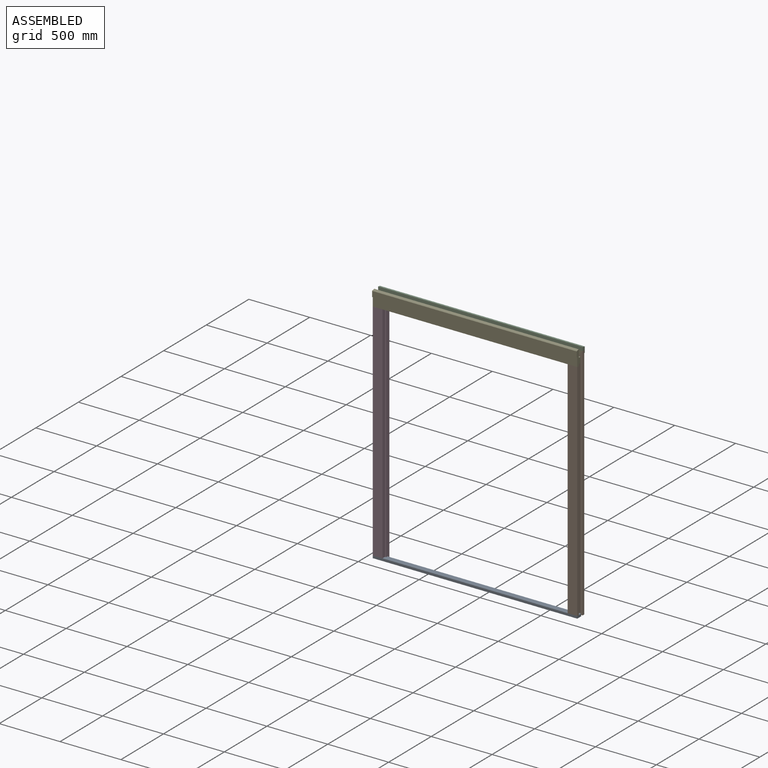
[diagram: assembled view]
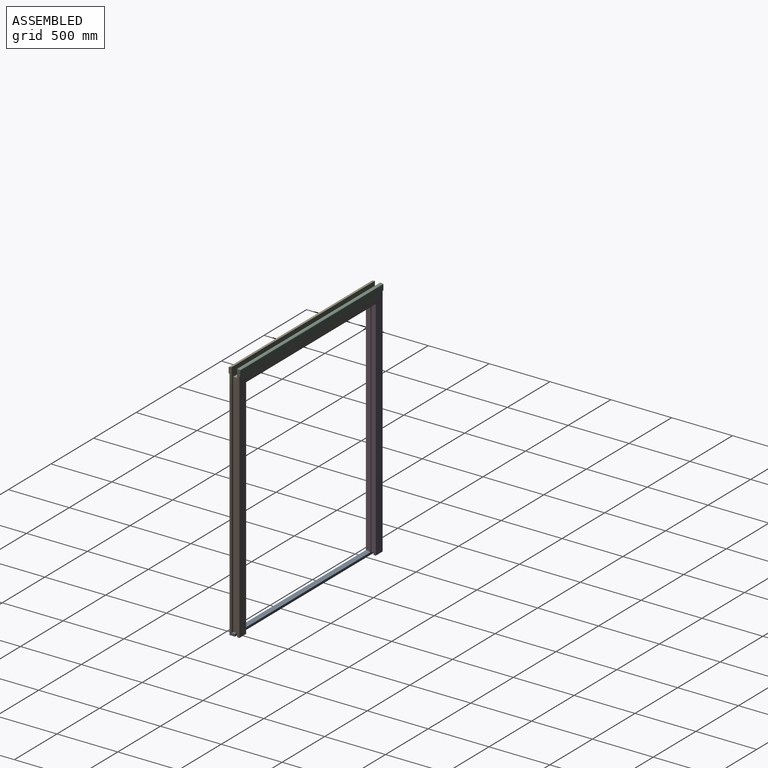
[diagram: assembled view, second angle]
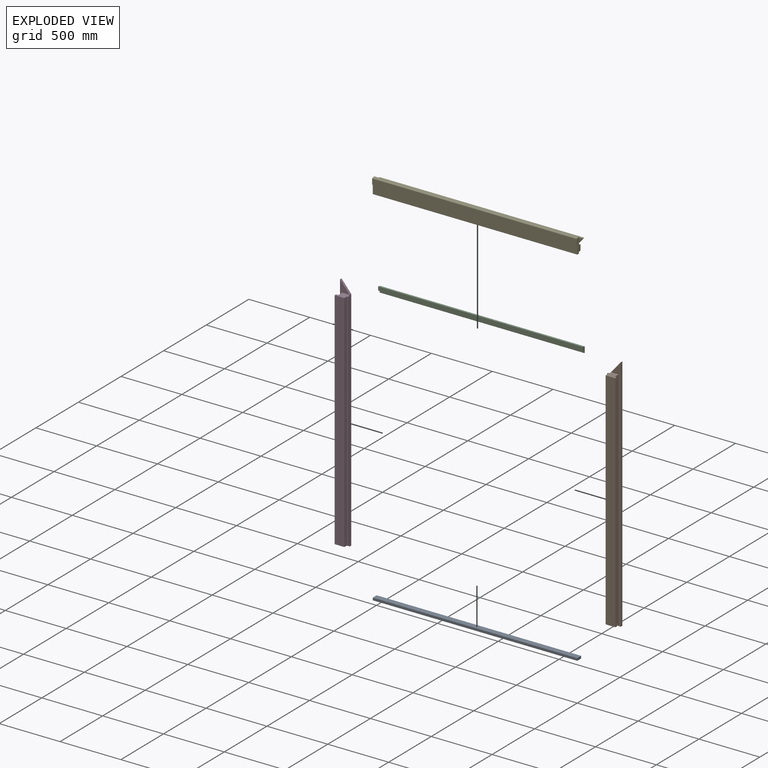
[diagram: exploded view]
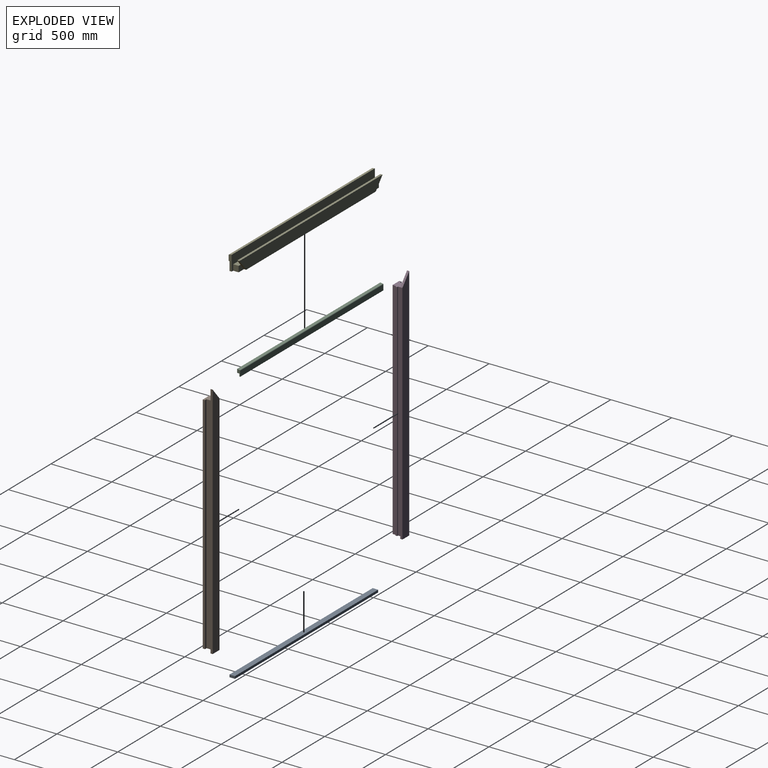
[diagram: exploded view, second angle]
ASSEMBLY  parts=5 mates=12
PART A: 6 faces, bbox 1681x45x20 mm
  f0: plane 1681x20mm, normal (0,-1,0), area 33620mm2, adj f1,f3,f4,f5
  f1: plane 1681x45mm, normal (0,0,-1), area 75645mm2, adj f0,f2,f4,f5
  f2: plane 1681x20mm, normal (0,1,0), area 33620mm2, adj f1,f3,f4,f5
  f3: plane 1681x45mm, normal (0,0,1), area 75645mm2, adj f0,f2,f4,f5
  f4: plane 45x20mm, normal (1,0,0), area 900mm2, adj f0,f1,f2,f3
  f5: plane 45x20mm, normal (-1,0,0), area 900mm2, adj f0,f1,f2,f3
PART B: 16 faces, bbox 90x81x1964 mm
  f0: plane 90x63mm, normal (0,0,-1), area 4380mm2, adj f2,f3,f4,f5,f8,f9,f10,f11
  f1: plane 90x63mm, normal (0,0,1), area 4380mm2, adj f2,f3,f4,f5,f8,f9,f10,f11
  f2: plane 1849x18mm, normal (1,0,0), area 33282mm2, adj f0,f1,f3,f12
  f3: plane 1849x18mm, normal (0,1,0), area 33282mm2, adj f0,f1,f2,f4
  f4: plane 1849x45mm, normal (1,0,0), area 83205mm2, adj f0,f1,f3,f5
  f5: plane 1964x80mm, normal (0,-1,0), area 38682mm2, adj f0,f1,f4,f6,f8,f14,f15
  f6: plane 1964x18mm, normal (1,0,0), area 35352mm2, adj f5,f7,f14,f15
  f7: plane 1964x80mm, normal (0,1,0), area 153320mm2, adj f6,f8,f14,f15
  f8: plane 1869x36mm, normal (-1,0,0), area 66924mm2, adj f0,f1,f5,f7,f9,f14,f15
  f9: plane 1849x10mm, normal (0,1,0), area 18490mm2, adj f0,f1,f8,f10
  f10: plane 1849x15mm, normal (-1,0,0), area 27735mm2, adj f0,f1,f9,f11
  f11: plane 1849x10mm, normal (0,-1,0), area 18490mm2, adj f0,f1,f10,f13
  f12: plane 1849x80mm, normal (0,-1,0), area 147920mm2, adj f0,f1,f2,f13
  f13: plane 1849x30mm, normal (-1,0,0), area 55470mm2, adj f0,f1,f11,f12
  f14: plane 95x80mm, normal (-0.76,0,0.64), area 2235.6mm2, adj f5,f6,f7,f8
  f15: plane 80x18mm, normal (0,0,-1), area 1440mm2, adj f5,f6,f7,f8
PART C: 9 faces, bbox 1681x25x52 mm
  f0: plane 52x25mm, normal (1,0,0), area 846.8mm2, adj f1,f2,f3,f4,f6,f7,f8
  f1: plane 1681x20.78mm, normal (0,0.16,0.99), area 35370.3mm2, adj f0,f2,f5,f6
  f2: cylinder r=5mm len=1681mm, axis (-1,0,0), area 11882.3mm2, adj f0,f1,f3,f5
  f3: plane 1681x43.77mm, normal (0,1,0), area 73574.3mm2, adj f0,f2,f4,f5
  f4: plane 1681x6.9mm, normal (0,0,-1), area 11598.9mm2, adj f0,f3,f5,f7
  f5: plane 52x25mm, normal (-1,0,0), area 846.8mm2, adj f1,f2,f3,f4,f6,f7,f8
  f6: plane 1681x29.9mm, normal (0,-1,0), area 50261.9mm2, adj f0,f1,f5,f8
  f7: plane 1681x22.1mm, normal (0,-1,0), area 37147mm2, adj f0,f4,f5,f8
  f8: plane 1681x18.1mm, normal (0,0,-1), area 30426.1mm2, adj f0,f5,f6,f7
PART D: 16 faces, bbox 90x81x1964 mm
  f0: plane 1849x10mm, normal (0,-1,0), area 18490mm2, adj f1,f11,f12,f13
  f1: plane 1849x15mm, normal (1,0,0), area 27735mm2, adj f0,f2,f12,f13
  f2: plane 1849x10mm, normal (0,1,0), area 18490mm2, adj f1,f3,f12,f13
  f3: plane 1869x36mm, normal (1,0,0), area 66924mm2, adj f2,f4,f6,f12,f13,f14,f15
  f4: plane 1964x80mm, normal (0,1,0), area 153320mm2, adj f3,f5,f14,f15
  f5: plane 1964x18mm, normal (-1,0,0), area 35352mm2, adj f4,f6,f14,f15
  f6: plane 1964x80mm, normal (0,-1,0), area 38682mm2, adj f3,f5,f7,f12,f13,f14,f15
  f7: plane 1849x45mm, normal (-1,0,0), area 83205mm2, adj f6,f8,f12,f13
  f8: plane 1849x18mm, normal (0,1,0), area 33282mm2, adj f7,f9,f12,f13
  f9: plane 1849x18mm, normal (-1,0,0), area 33282mm2, adj f8,f10,f12,f13
  f10: plane 1849x80mm, normal (0,-1,0), area 147920mm2, adj f9,f11,f12,f13
  f11: plane 1849x30mm, normal (1,0,0), area 55470mm2, adj f0,f10,f12,f13
  f12: plane 90x63mm, normal (0,0,1), area 4380mm2, adj f0,f1,f2,f3,f6,f7,f8,f9
  f13: plane 90x63mm, normal (0,0,-1), area 4380mm2, adj f0,f1,f2,f3,f6,f7,f8,f9
  f14: plane 95x80mm, normal (0.76,0,0.64), area 2235.6mm2, adj f3,f4,f5,f6
  f15: plane 80x18mm, normal (0,0,-1), area 1440mm2, adj f3,f4,f5,f6
PART E: 24 faces, bbox 1681x88x135 mm
  f0: plane 1681x81mm, normal (0,0,-1), area 109146mm2, adj f1,f2,f4,f5,f6,f7,f8,f9
  f1: plane 62x48mm, normal (0,1,0), area 2005.9mm2, adj f0,f3,f8,f11
  f2: plane 62x48mm, normal (0,1,0), area 2005.9mm2, adj f0,f3,f7,f13
  f3: plane 1645x45mm, normal (0,0,1), area 74025mm2, adj f1,f2,f6,f7,f8,f10
  f4: plane 1681x73mm, normal (0,-1,0), area 122716.1mm2, adj f0,f5,f9,f23
  f5: plane 125x25mm, normal (1,0,0), area 2560.8mm2, adj f0,f4,f6,f20,f21,f22,f23
  f6: plane 1681x125mm, normal (0,1,0), area 131165mm2, adj f0,f3,f5,f7,f8,f9,f22
  f7: plane 48x45mm, normal (1,0,0), area 2160mm2, adj f0,f2,f3,f6
  f8: plane 48x45mm, normal (-1,0,0), area 2160mm2, adj f0,f1,f3,f6
  f9: plane 125x25mm, normal (-1,0,0), area 2560.8mm2, adj f0,f4,f6,f20,f21,f22,f23
  f10: plane 1681x47mm, normal (0,-1,0), area 77146.8mm2, adj f3,f11,f12,f13
  f11: plane 95x80mm, normal (-0.76,0,-0.64), area 2235.6mm2, adj f0,f1,f10,f12,f14
  f12: plane 1681x18mm, normal (0,0,1), area 30258mm2, adj f10,f11,f13,f14
  f13: plane 95x80mm, normal (0.76,0,-0.64), area 2235.6mm2, adj f0,f2,f10,f12,f14
  f14: plane 1681x95mm, normal (0,1,0), area 152095mm2, adj f0,f11,f12,f13
  f15: plane 15x10mm, normal (-1,0,0), area 150mm2, adj f0,f16,f18,f19
  f16: plane 1501x10mm, normal (0,1,0), area 15010mm2, adj f0,f15,f17,f19
  f17: plane 15x10mm, normal (1,0,0), area 150mm2, adj f0,f16,f18,f19
  f18: plane 1501x10mm, normal (0,-1,0), area 15010mm2, adj f0,f15,f17,f19
  f19: plane 1501x15mm, normal (0,0,-1), area 22515mm2, adj f15,f16,f17,f18
  f20: plane 1681x43.77mm, normal (0,-1,0), area 73574.3mm2, adj f5,f9,f21,f23
  f21: cylinder r=5mm len=1681mm, axis (-1,0,0), area 11882.3mm2, adj f5,f9,f20,f22
  f22: plane 1681x20.78mm, normal (0,-0.16,0.99), area 35370.3mm2, adj f5,f6,f9,f21
  f23: plane 1681x7mm, normal (0,0,-1), area 11767mm2, adj f4,f5,f9,f20
PLACE A at identity
PLACE B at identity
PLACE C t=(0,-0.1,-0.1)mm
PLACE D at identity fixed
PLACE E at identity
MATE planar E.f9 <-> D.f9  axis (-1,0,0) through (-18,-25,1943.89)mm
MATE planar C.f7 <-> E.f14  axis (0,-1,0) through (822.5,63,1932.95)mm
MATE planar E.f0 <-> D.f12  axis (0,0,-1) through (72,12,1849)mm
MATE planar E.f14 <-> D.f4  axis (0,1,0) through (822.5,63,1897.29)mm
MATE planar B.f2 <-> E.f5  axis (1,0,0) through (1663,-9,924.5)mm
MATE planar B.f1 <-> E.f0  axis (0,0,1) through (1615.73,12.04,1849)mm
MATE planar C.f8 <-> E.f12  axis (0,0,-1) through (822.5,53.95,1944)mm
MATE planar A.f5 <-> D.f9  axis (-1,0,0) through (-18,4.5,0)mm
MATE planar B.f12 <-> E.f4  axis (0,-1,0) through (1623,-18,924.5)mm
MATE planar A.f0 <-> D.f10  axis (0,-1,0) through (822.5,-18,-10)mm
MATE planar E.f5 <-> C.f0  axis (1,0,0) through (1663,-18,1922)mm
MATE planar A.f3 <-> D.f13  axis (0,0,1) through (-18,27,0)mm
